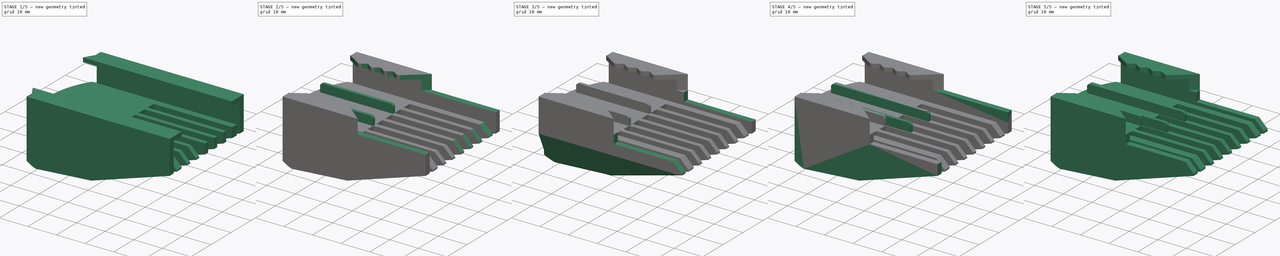
[diagram: build sequence overview — one tinted view per stage of 5, left to right]
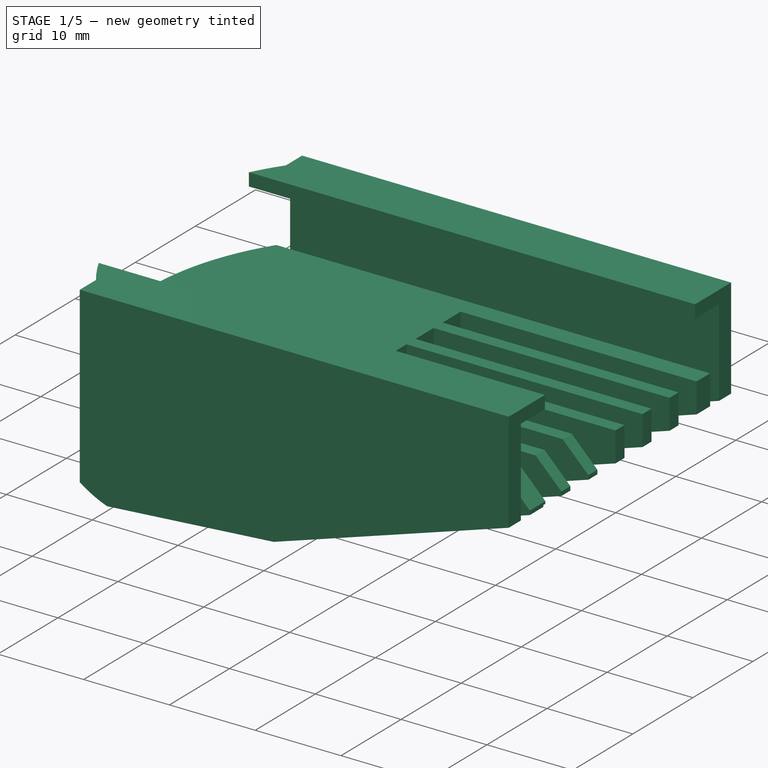
[diagram: stage 1 of 5 — iso view after this stage's code; geometry added in this stage tinted green]
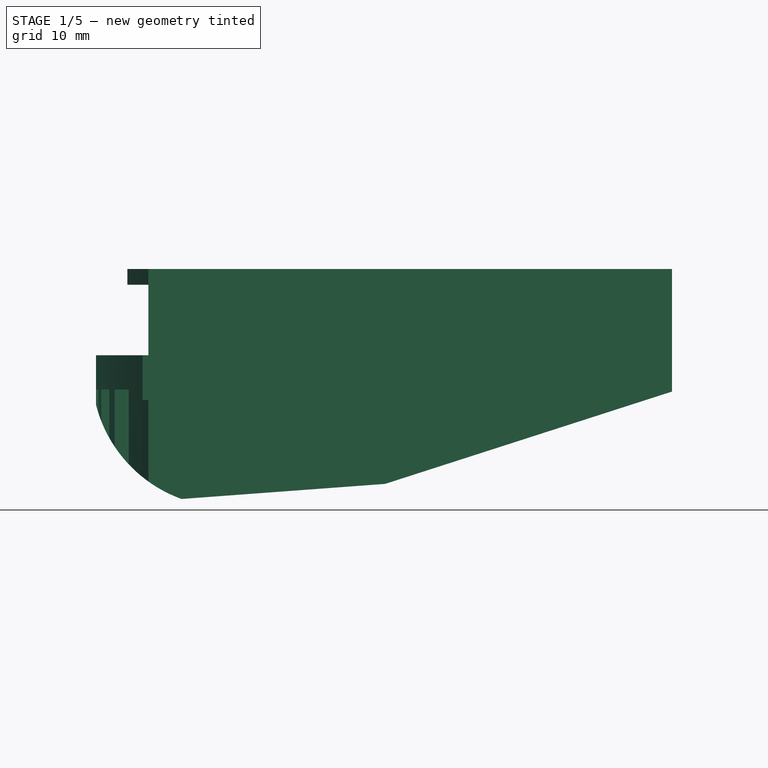
[diagram: stage 1 of 5 — front view after this stage's code; geometry added in this stage tinted green]
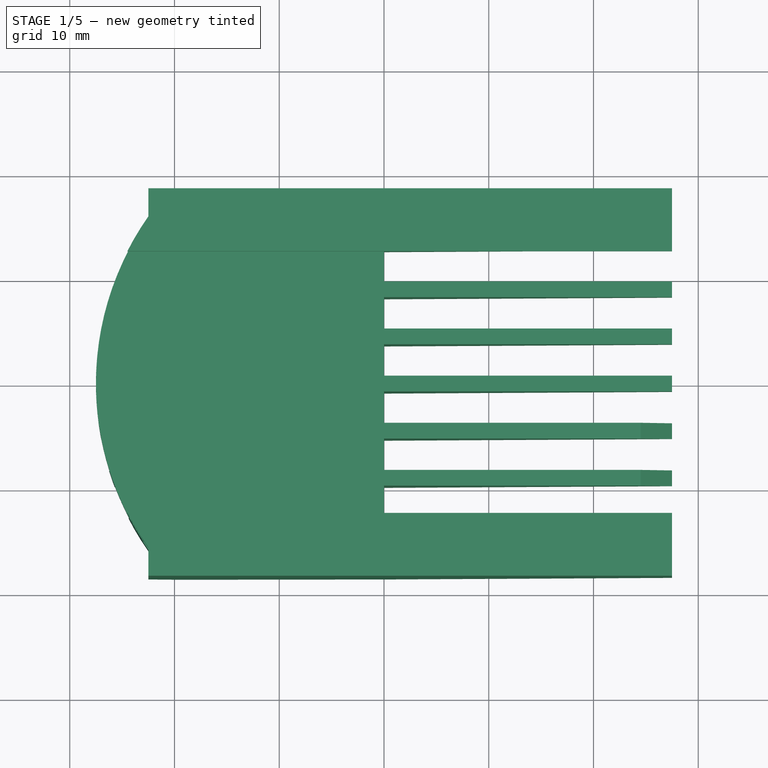
[diagram: stage 1 of 5 — top view after this stage's code; geometry added in this stage tinted green]
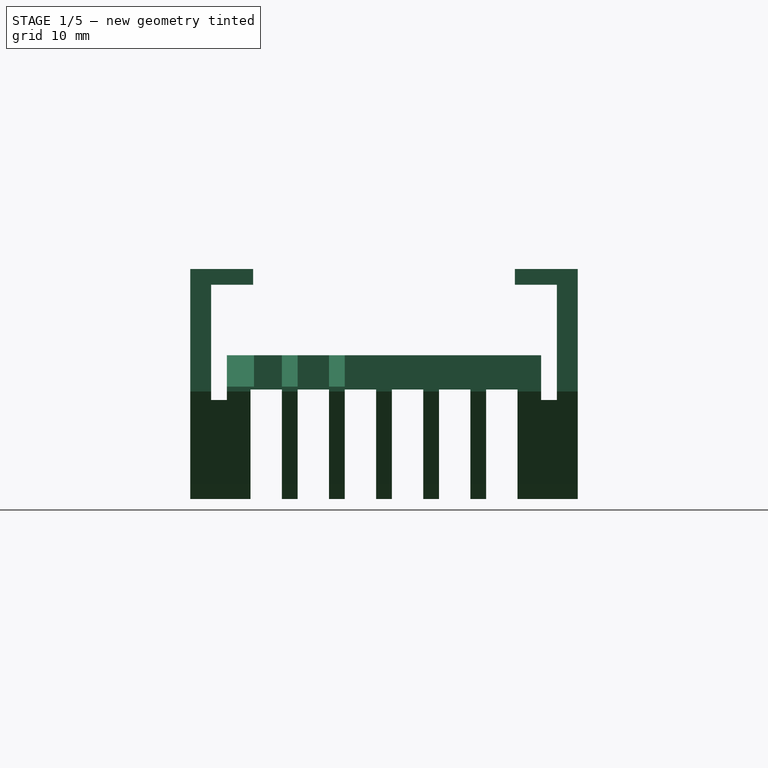
[diagram: stage 1 of 5 — right view after this stage's code; geometry added in this stage tinted green]
FCSTD DOCUMENT  (FreeCAD 0.19R24291 (Git))
Label: model
License: All rights reserved
LicenseURL: http://en.wikipedia.org/wiki/All_rights_reserved
objects: PartDesign::Fillet×20, Sketcher::SketchObject×11, PartDesign::Chamfer×11, PartDesign::Pocket×10, PartDesign::Pad×2, PartDesign::Plane×2, Spreadsheet::Sheet×1, PartDesign::Point×1, PartDesign::Body×1
note: 101 computed .brp shape members not serialized (recipe doc carries the construction recipe); baked Part::Feature solids carry a one-line shape summary decoded from their .brp

FEATURE [Spreadsheet::Sheet] Spreadsheet  label="parameters"
  cells = A1=length; B1(length)=55; A2=width; B2(width)=37; A3=height; B3(height)=22
FEATURE [PartDesign::Point] DatumPoint
  AttacherType = Attacher::AttachEnginePoint
FEATURE [Sketcher::SketchObject] Sketch
  FullyConstrained = false
  MapMode = 5
  Support = -> [XY_Plane]
  expr: Constraints[5] = <<parameters>>.width
  expr: Constraints[6] = <<parameters>>.width / 2
  sketch-geometry (7):
    g0: LineSegment StartX=-22.5 StartY=18.5 StartZ=0 EndX=27.5 EndY=18.5 EndZ=0
    g1: LineSegment StartX=27.5 StartY=18.5 StartZ=0 EndX=27.5 EndY=-18.5 EndZ=0
    g2: LineSegment StartX=27.5 StartY=-18.5 StartZ=0 EndX=-22.5 EndY=-18.5 EndZ=0
    g3: ArcOfCircle CenterX=0 CenterY=0 CenterZ=0 NormalX=0 NormalY=0 NormalZ=1 AngleXU=0 Radius=27.5 StartAngle=2.52904 EndAngle=3.75415
    g4: LineSegment StartX=-22.5 StartY=15.8114 StartZ=0 EndX=-22.5 EndY=18.5 EndZ=0
    g5: LineSegment StartX=-22.5 StartY=-15.8114 StartZ=0 EndX=-22.5 EndY=-18.5 EndZ=0
    g6: GeomPoint X=-27.5 Y=-4.01198e-05 Z=0
  constraints (17):
    c: Coincident(g0,g1)
    c: Coincident(g1,g2)
    c: Horizontal(g0)
    c: Horizontal(g2)
    c: Vertical(g1)
    c: DistanceY(g1,g0) = 37
    c: DistanceY(g-1,g0) = 18.5
    c: Coincident(g3,g-1)
    c: Vertical(g4)
    c: Vertical(g5)
    c: Coincident(g3,g4)
    c: Coincident(g3,g5)
    c: DistanceX(g3,g0) = 27.5
    c: Coincident(g0,g4)
    c: Coincident(g2,g5)
    c: PointOnObject(g6,g3)
    c: DistanceX(g6,g3) = 27.5
FEATURE [PartDesign::Pad] Pad
  Direction = (1,1,1)
  Length = 22
  Length2 = 100
  Profile = -> Sketch
  Type = 0
  expr: Length = <<parameters>>.height
FEATURE [Sketcher::SketchObject] Sketch001
  FullyConstrained = false
  MapMode = 5
  Placement = pos=(27.5,0,0) rot=(0.57735,0.57735,0.57735;2.0944rad)
  Support = -> [Pad]
  expr: Constraints[22] = <<parameters>>.height / 2
  sketch-geometry (15):
    g0: GeomPoint X=0 Y=11 Z=0
    g1: LineSegment StartX=-12.5 StartY=22 StartZ=0 EndX=12.5 EndY=22 EndZ=0
    g2: LineSegment StartX=-16.5 StartY=20.5 StartZ=0 EndX=-12.5 EndY=20.5 EndZ=0
    g3: LineSegment StartX=-12.5 StartY=22 StartZ=0 EndX=-12.5 EndY=20.5 EndZ=0
    g4: LineSegment StartX=12.5 StartY=22 StartZ=0 EndX=12.5 EndY=20.5 EndZ=0
    g5: LineSegment StartX=-16.5 StartY=20.5 StartZ=0 EndX=-16.5 EndY=13.772 EndZ=0
    g6: LineSegment StartX=-15 StartY=13.772 StartZ=0 EndX=15 EndY=13.772 EndZ=0
    g7: LineSegment StartX=16.5 StartY=20.5 StartZ=0 EndX=16.5 EndY=13.772 EndZ=0
    g8: LineSegment StartX=-16.5 StartY=13.772 StartZ=0 EndX=-16.5 EndY=9.5 EndZ=0
    g9: LineSegment StartX=-16.5 StartY=9.5 StartZ=0 EndX=-15 EndY=9.5 EndZ=0
    g10: LineSegment StartX=-15 StartY=9.5 StartZ=0 EndX=-15 EndY=13.772 EndZ=0
    g11: LineSegment StartX=16.5 StartY=13.772 StartZ=0 EndX=16.5 EndY=9.5 EndZ=0
    g12: LineSegment StartX=16.5 StartY=9.5 StartZ=0 EndX=15 EndY=9.5 EndZ=0
    g13: LineSegment StartX=15 StartY=9.5 StartZ=0 EndX=15 EndY=13.772 EndZ=0
    g14: LineSegment StartX=12.5 StartY=20.5 StartZ=0 EndX=16.5 EndY=20.5 EndZ=0
  constraints (35):
    c: PointOnObject(g0,g-2)
    c: Horizontal(g1)
    c: Horizontal(g2)
    c: Vertical(g3)
    c: Vertical(g4)
    c: Coincident(g5,g2)
    c: Vertical(g5)
    c: Horizontal(g6)
    c: Coincident(g7,g14)
    c: Vertical(g7)
    c: Coincident(g8,g5)
    c: Vertical(g8)
    c: Coincident(g9,g8)
    c: Horizontal(g9)
    c: Coincident(g10,g9)
    c: Vertical(g10)
    c: Coincident(g11,g7)
    c: Vertical(g11)
    c: Coincident(g12,g11)
    c: Horizontal(g12)
    c: Coincident(g13,g12)
    c: Vertical(g13)
    c: DistanceY(g-1,g0) = 11
    c: Coincident(g6,g10)
    c: Coincident(g6,g13)
    c: Coincident(g2,g3)
    c: Coincident(g14,g4)
    c: Tangent(g2,g14)
    c: DistanceX(g8,g9) = 1.5
    c: DistanceX(g12,g11) = 1.5
    c: DistanceY(g2,g3) = 1.5
    c: DistanceY(g8,g2) = 11
    c: DistanceY(g11,g7) = 11
    c: Coincident(g1,g3)
    c: Coincident(g1,g4)
FEATURE [PartDesign::Pocket] Pocket
  BaseFeature = -> Pad
  Length = 5
  Length2 = 100
  Profile = -> Sketch001
  Type = 1
FEATURE [Sketcher::SketchObject] Sketch002
  FullyConstrained = false
  MapMode = 5
  Placement = pos=(0,-18.5,0) rot=(1,0,0;1.5708rad)
  Support = -> [Pocket]
  sketch-geometry (8):
    g0: LineSegment StartX=27.5 StartY=10.3029 StartZ=0 EndX=27.5 EndY=0 EndZ=0
    g1: LineSegment StartX=-19.3265 StartY=0 StartZ=0 EndX=-27.5 EndY=0 EndZ=0
    g2: LineSegment StartX=-27.5 StartY=0 StartZ=0 EndX=-27.5 EndY=9.04586 EndZ=0
    g3: ArcOfCircle CenterX=-14.9072 CenterY=12.274 CenterZ=0 NormalX=0 NormalY=0 NormalZ=1 AngleXU=0 Radius=13 StartAngle=3.39254 EndAngle=4.36553
    g4: GeomPoint X=5.5 Y=1.30201 Z=0
    g5: LineSegment StartX=-19.3265 StartY=0.0482022 StartZ=0 EndX=0.104304 EndY=1.48647 EndZ=0
    g6: LineSegment StartX=0.104304 StartY=1.48647 StartZ=0 EndX=27.5 EndY=10.3029 EndZ=0
    g7: LineSegment StartX=-19.3265 StartY=0 StartZ=0 EndX=27.5 EndY=0 EndZ=0
  constraints (16):
    c: Coincident(g1,g2)
    c: Horizontal(g1)
    c: Vertical(g0)
    c: Vertical(g2)
    c: PointOnObject(g0,g-1)
    c: DistanceX(g-1,g0) = 27.5
    c: DistanceX(g1,g-1) = 27.5
    c: Radius(g3) = 13
    c: DistanceX(g1,g4) = 33
    c: Coincident(g5,g3)
    c: Coincident(g6,g5)
    c: Coincident(g2,g3)
    c: Coincident(g0,g6)
    c: Coincident(g7,g1)
    c: Coincident(g7,g0)
    c: Horizontal(g7)
FEATURE [PartDesign::Pocket] Pocket001
  BaseFeature = -> Pocket
  Length = 5
  Length2 = 100
  Profile = -> Sketch002
  Type = 1
FEATURE [PartDesign::Plane] DatumPlane
  AttachmentOffset = pos=(0,0,-10.5) rot=(0,0,1;0rad)
  Length = 65.4881
  MapMode = 5
  Placement = pos=(0,0,10.5) rot=(0,1,0;3.14159rad)
  ResizeMode = 0
  Support = -> [XY_Plane]
  Width = 60.4881
FEATURE [Sketcher::SketchObject] Sketch003
  FullyConstrained = false
  MapMode = 5
  Placement = pos=(0,0,10.5) rot=(0,1,0;3.14159rad)
  Support = -> [DatumPlane]
  sketch-geometry (24):
    g0: LineSegment StartX=27.6077 StartY=0.75 StartZ=0 EndX=-28.7834 EndY=0.75 EndZ=0
    g1: LineSegment StartX=27.6077 StartY=3.75 StartZ=0 EndX=-28.7834 EndY=3.75 EndZ=0
    g2: LineSegment StartX=27.6077 StartY=0.75 StartZ=0 EndX=27.6077 EndY=3.75 EndZ=0
    g3: LineSegment StartX=-28.7834 StartY=0.75 StartZ=0 EndX=-28.7834 EndY=3.75 EndZ=0
    g4: LineSegment StartX=27.6638 StartY=-0.75 StartZ=0 EndX=-28.4956 EndY=-0.75 EndZ=0
    g5: LineSegment StartX=27.6638 StartY=-0.75 StartZ=0 EndX=27.6638 EndY=-3.75 EndZ=0
    g6: LineSegment StartX=27.6638 StartY=-3.75 StartZ=0 EndX=-28.4183 EndY=-3.75 EndZ=0
    g7: LineSegment StartX=-28.4183 StartY=-3.75 StartZ=0 EndX=-28.4956 EndY=-0.75 EndZ=0
    g8: LineSegment StartX=-28.6708 StartY=5.25 StartZ=0 EndX=27.643 EndY=5.25 EndZ=0
    g9: LineSegment StartX=-28.6708 StartY=5.25 StartZ=0 EndX=-28.6708 EndY=8.25 EndZ=0
    g10: LineSegment StartX=-28.6708 StartY=8.25 StartZ=0 EndX=27.4885 EndY=8.25 EndZ=0
    g11: LineSegment StartX=27.4885 StartY=8.25 StartZ=0 EndX=27.643 EndY=5.25 EndZ=0
    g12: LineSegment StartX=-28.3618 StartY=-5.25 StartZ=0 EndX=27.7203 EndY=-5.25 EndZ=0
    g13: LineSegment StartX=27.7203 StartY=-5.25 StartZ=0 EndX=27.7203 EndY=-8.25 EndZ=0
    g14: LineSegment StartX=27.7203 StartY=-8.25 StartZ=0 EndX=-28.3618 EndY=-8.25 EndZ=0
    g15: LineSegment StartX=-28.3618 StartY=-5.25 StartZ=0 EndX=-28.3618 EndY=-8.25 EndZ=0
    g16: LineSegment StartX=-28.6708 StartY=9.75 StartZ=0 EndX=27.643 EndY=9.75 EndZ=0
    g17: LineSegment StartX=27.643 StartY=9.75 StartZ=0 EndX=27.643 EndY=12.75 EndZ=0
    g18: LineSegment StartX=27.643 StartY=12.75 StartZ=0 EndX=-28.6708 EndY=12.75 EndZ=0
    g19: LineSegment StartX=-28.6708 StartY=12.75 StartZ=0 EndX=-28.6708 EndY=9.75 EndZ=0
    g20: LineSegment StartX=-28.2073 StartY=-9.75 StartZ=0 EndX=27.8748 EndY=-9.75 EndZ=0
    g21: LineSegment StartX=27.8748 StartY=-9.75 StartZ=0 EndX=27.8748 EndY=-12.75 EndZ=0
    g22: LineSegment StartX=27.8748 StartY=-12.75 StartZ=0 EndX=-28.2073 EndY=-12.75 EndZ=0
    g23: LineSegment StartX=-28.2073 StartY=-12.75 StartZ=0 EndX=-28.2073 EndY=-9.75 EndZ=0
  constraints (58):
    c: Horizontal(g0)
    c: Horizontal(g1)
    c: DistanceY(g0,g1) = 3
    c: DistanceY(g0,g-1) = -0.75
    c: Coincident(g2,g0)
    c: Coincident(g2,g1)
    c: Vertical(g2)
    c: Coincident(g3,g0)
    c: Coincident(g3,g1)
    c: Vertical(g3)
    c: Horizontal(g4)
    c: Coincident(g5,g4)
    c: Vertical(g5)
    c: Coincident(g6,g5)
    c: Horizontal(g6)
    c: Coincident(g7,g6)
    c: Coincident(g7,g4)
    c: DistanceY(g4,g0) = 1.5
    c: DistanceY(g5,g4) = 3
    c: Horizontal(g8)
    c: Coincident(g9,g8)
    c: Vertical(g9)
    c: Coincident(g10,g9)
    c: Horizontal(g10)
    c: Coincident(g11,g10)
    c: Coincident(g11,g8)
    c: Horizontal(g12)
    c: Coincident(g13,g12)
    c: Vertical(g13)
    c: Coincident(g14,g13)
    c: Horizontal(g14)
    c: Coincident(g15,g12)
    c: Coincident(g15,g14)
    c: Vertical(g15)
    c: DistanceY(g1,g8) = 1.5
    c: DistanceY(g8,g9) = 3
    c: DistanceY(g12,g6) = 1.5
    c: DistanceY(g14,g12) = 3
    c: Horizontal(g16)
    c: Coincident(g17,g16)
    c: Vertical(g17)
    c: Coincident(g18,g17)
    c: Horizontal(g18)
    c: Coincident(g19,g18)
    c: Coincident(g19,g16)
    c: Vertical(g19)
    c: Horizontal(g20)
    c: Coincident(g21,g20)
    c: Vertical(g21)
    c: Coincident(g22,g21)
    c: Horizontal(g22)
    c: Coincident(g23,g22)
    c: Coincident(g23,g20)
    c: Vertical(g23)
    c: DistanceY(g9,g16) = 1.5
    c: DistanceY(g16,g18) = 3
    c: DistanceY(g20,g14) = 1.5
    c: DistanceY(g22,g20) = 3
FEATURE [PartDesign::Pocket] Pocket002
  BaseFeature = -> Pocket001
  Length = 5
  Length2 = 100
  Profile = -> Sketch003
  Reversed = true
  Type = 1
FEATURE [Sketcher::SketchObject] Sketch004
  FullyConstrained = false
  MapMode = 5
  Placement = pos=(0,0,13.772) rot=(0,0,1;0rad)
  Support = -> [Pocket002]
  sketch-geometry (25):
    g0: LineSegment StartX=0 StartY=12.75 StartZ=0 EndX=0 EndY=9.75 EndZ=0
    g1: LineSegment StartX=0 StartY=0.75 StartZ=0 EndX=28.2647 EndY=0.75 EndZ=0
    g2: LineSegment StartX=0 StartY=3.75 StartZ=0 EndX=28.1511 EndY=3.75 EndZ=0
    g3: LineSegment StartX=0 StartY=-0.75 StartZ=0 EndX=28.2647 EndY=-0.75 EndZ=0
    g4: LineSegment StartX=0 StartY=-3.75 StartZ=0 EndX=28.2647 EndY=-3.75 EndZ=0
    g5: LineSegment StartX=28.2647 StartY=0.75 StartZ=0 EndX=28.2647 EndY=-0.75 EndZ=0
    g6: LineSegment StartX=0 StartY=5.25 StartZ=0 EndX=28.1511 EndY=5.25 EndZ=0
    g7: LineSegment StartX=28.1511 StartY=5.25 StartZ=0 EndX=28.1511 EndY=3.75 EndZ=0
    g8: LineSegment StartX=0 StartY=8.25 StartZ=0 EndX=27.7899 EndY=8.25 EndZ=0
    g9: LineSegment StartX=0 StartY=9.75 StartZ=0 EndX=27.7899 EndY=9.75 EndZ=0
    g10: LineSegment StartX=27.7899 StartY=8.25 StartZ=0 EndX=27.7899 EndY=9.75 EndZ=0
    g11: LineSegment StartX=0 StartY=12.75 StartZ=0 EndX=30.0485 EndY=12.75 EndZ=0
    g12: LineSegment StartX=28.2647 StartY=-3.75 StartZ=0 EndX=28.2647 EndY=-5.25 EndZ=0
    g13: LineSegment StartX=28.2647 StartY=-5.25 StartZ=0 EndX=0 EndY=-5.25 EndZ=0
    g14: LineSegment StartX=0 StartY=-5.25 StartZ=0 EndX=0 EndY=-8.25 EndZ=0
    g15: LineSegment StartX=28.3296 StartY=-9.75 StartZ=0 EndX=0 EndY=-9.75 EndZ=0
    g16: LineSegment StartX=0 StartY=-8.25 StartZ=0 EndX=28.3296 EndY=-8.25 EndZ=0
    g17: LineSegment StartX=28.3296 StartY=-8.25 StartZ=0 EndX=28.3296 EndY=-9.75 EndZ=0
    g18: LineSegment StartX=0 StartY=-12.4073 StartZ=0 EndX=30.0485 EndY=-12.4073 EndZ=0
    g19: LineSegment StartX=30.0485 StartY=-12.4073 StartZ=0 EndX=30.0485 EndY=12.75 EndZ=0
    g20: LineSegment StartX=0 StartY=-0.75 StartZ=0 EndX=0 EndY=-3.75 EndZ=0
    g21: LineSegment StartX=0 StartY=-5.25 StartZ=0 EndX=0 EndY=-8.25 EndZ=0
    g22: LineSegment StartX=0 StartY=-9.75 StartZ=0 EndX=0 EndY=-12.4073 EndZ=0
    g23: LineSegment StartX=0 StartY=8.25 StartZ=0 EndX=0 EndY=5.25 EndZ=0
    g24: LineSegment StartX=0 StartY=3.75 StartZ=0 EndX=0 EndY=0.75 EndZ=0
  constraints (66):
    c: Horizontal(g1)
    c: PointOnObject(g2,g0)
    c: Horizontal(g2)
    c: Horizontal(g3)
    c: PointOnObject(g4,g0)
    c: Horizontal(g4)
    c: Coincident(g5,g1)
    c: Coincident(g5,g3)
    c: Vertical(g5)
    c: DistanceY(g3,g1) = 1.5
    c: DistanceY(g-1,g1) = 0.75
    c: DistanceY(g1,g2) = 3
    c: DistanceY(g4,g3) = 3
    c: PointOnObject(g6,g0)
    c: Horizontal(g6)
    c: Coincident(g7,g6)
    c: Coincident(g7,g2)
    c: Vertical(g7)
    c: Horizontal(g8)
    c: Horizontal(g9)
    c: Coincident(g10,g8)
    c: Coincident(g10,g9)
    c: Vertical(g10)
    c: Horizontal(g11)
    c: DistanceY(g2,g6) = 1.5
    c: DistanceY(g6,g8) = 3
    c: DistanceY(g8,g9) = 1.5
    c: DistanceY(g9,g11) = 3
    c: Coincident(g12,g4)
    c: Vertical(g12)
    c: Coincident(g13,g12)
    c: PointOnObject(g13,g0)
    c: Horizontal(g13)
    c: Coincident(g14,g13)
    c: PointOnObject(g14,g0)
    c: PointOnObject(g15,g0)
    c: Horizontal(g15)
    c: DistanceY(g13,g4) = 1.5
    c: DistanceY(g14,g13) = 3
    c: Coincident(g16,g14)
    c: Horizontal(g16)
    c: Coincident(g17,g16)
    c: Coincident(g17,g15)
    c: Vertical(g17)
    c: DistanceY(g15,g16) = 1.5
    c: PointOnObject(g18,g0)
    c: Horizontal(g18)
    c: Coincident(g19,g18)
    c: Coincident(g19,g11)
    c: Vertical(g19)
    c: Coincident(g24,g1)
    c: Coincident(g20,g3)
    c: Tangent(g0,g20)
    c: PointOnObject(g20,g4)
    c: PointOnObject(g21,g13)
    c: Tangent(g20,g21)
    c: PointOnObject(g22,g15)
    c: Tangent(g21,g22)
    c: Coincident(g0,g9)
    c: Coincident(g23,g8)
    c: Tangent(g0,g23)
    c: Coincident(g0,g11)
    c: PointOnObject(g22,g18)
    c: PointOnObject(g23,g6)
    c: PointOnObject(g24,g2)
    c: Tangent(g23,g24)
FEATURE [PartDesign::Pocket] Pocket003
  BaseFeature = -> Pocket002
  Length = 5
  Length2 = 100
  Profile = -> Sketch004
  Type = 1
FEATURE [PartDesign::Pocket] Pocket004
  BaseFeature = -> Pocket003
  Length = 5
  Length2 = 100
  Profile = -> Sketch004
  Type = 1
FEATURE [PartDesign::Chamfer] Chamfer
  Angle = 45
  Base = -> Pocket004 [Edge150]
  BaseFeature = -> Pocket004
  ChamferType = 0
  FlipDirection = false
  Size = 3
  Size2 = 1
  SupportTransform = false
FEATURE [PartDesign::Chamfer] Chamfer001
  Angle = 45
  Base = -> Chamfer [Edge24]
  BaseFeature = -> Chamfer
  ChamferType = 0
  FlipDirection = false
  Size = 3
  Size2 = 1
  SupportTransform = false
FEATURE [PartDesign::Chamfer] Chamfer002
  Angle = 45
  Base = -> Chamfer001 [Edge10]
  BaseFeature = -> Chamfer001
  ChamferType = 0
  FlipDirection = false
  Size = 3
  Size2 = 1
  SupportTransform = false
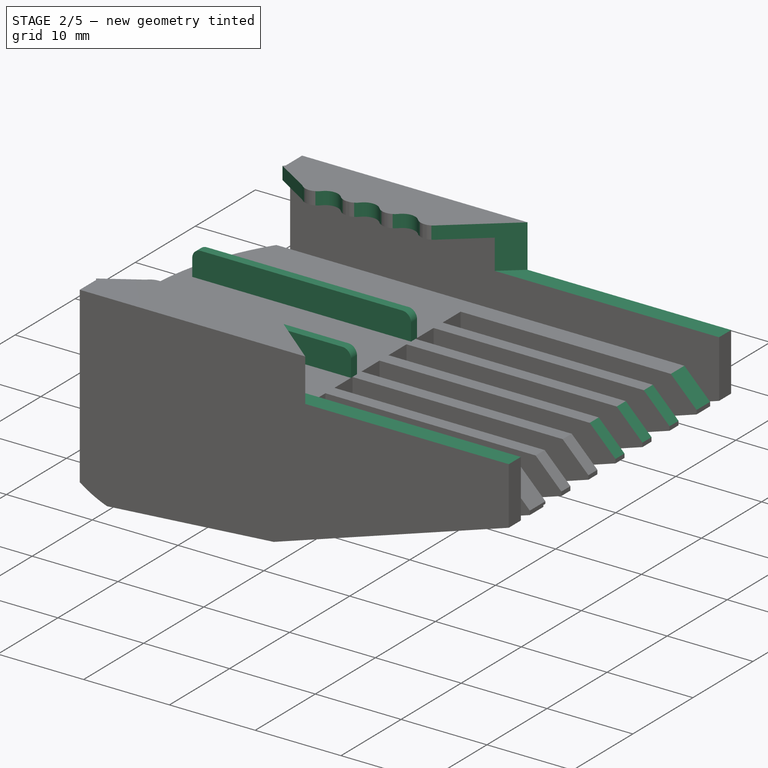
[diagram: stage 2 of 5 — iso view after this stage's code; geometry added in this stage tinted green]
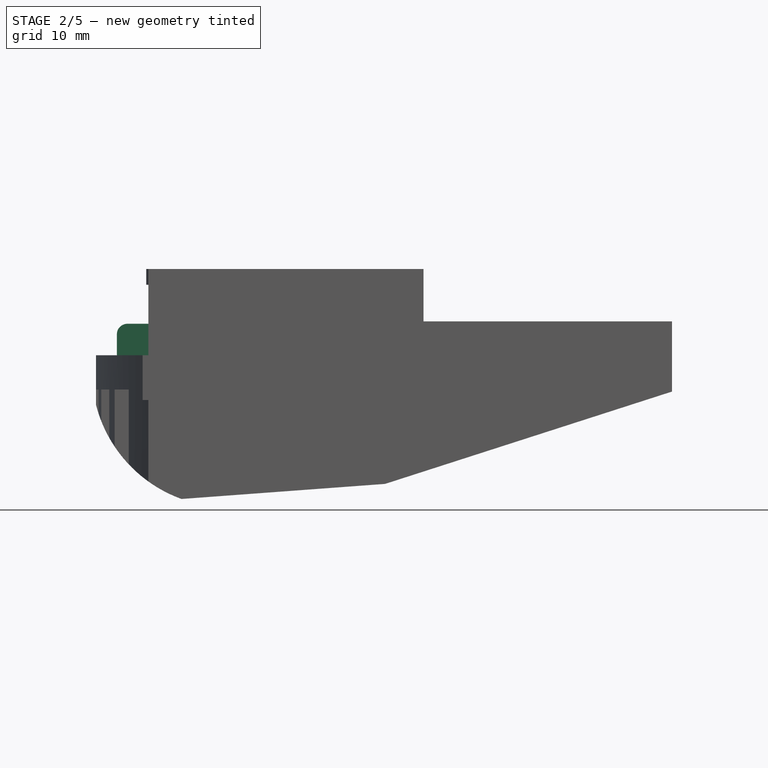
[diagram: stage 2 of 5 — front view after this stage's code; geometry added in this stage tinted green]
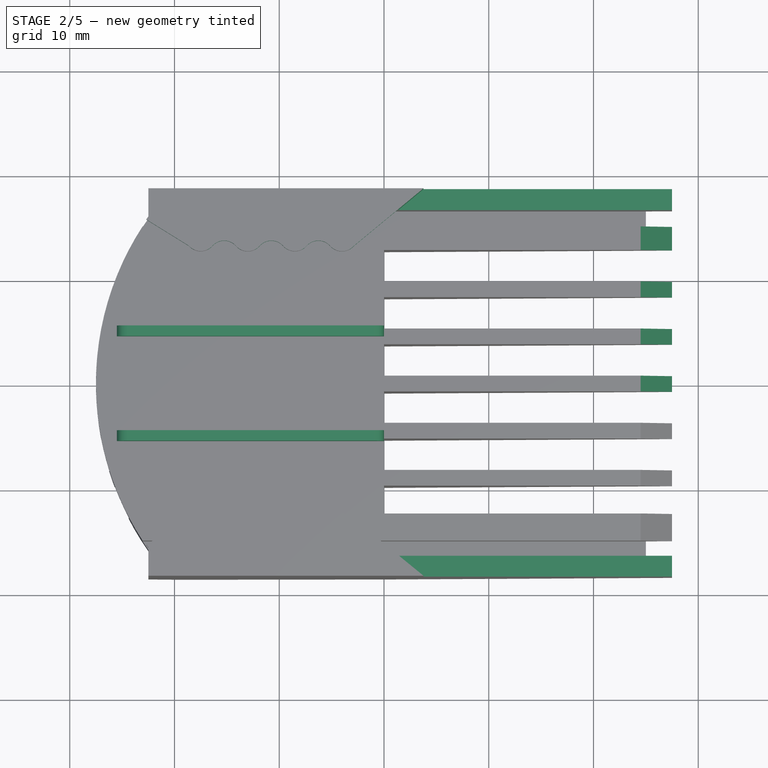
[diagram: stage 2 of 5 — top view after this stage's code; geometry added in this stage tinted green]
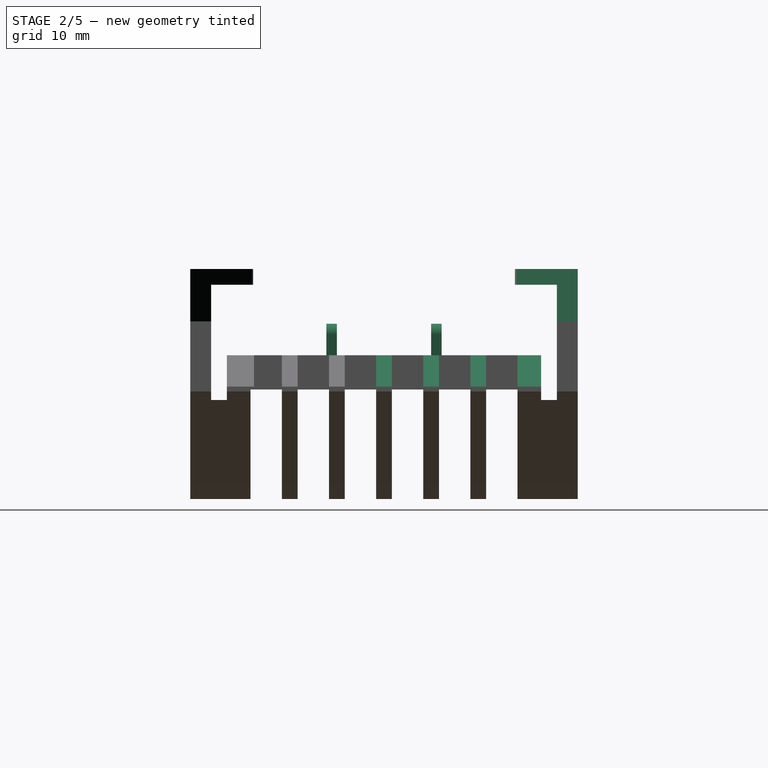
[diagram: stage 2 of 5 — right view after this stage's code; geometry added in this stage tinted green]
FEATURE [PartDesign::Chamfer] Chamfer003
  Angle = 45
  Base = -> Chamfer002 [Edge10]
  BaseFeature = -> Chamfer002
  ChamferType = 0
  FlipDirection = false
  Size = 3
  Size2 = 1
  SupportTransform = false
FEATURE [PartDesign::Chamfer] Chamfer004
  Angle = 45
  Base = -> Chamfer003 [Edge10]
  BaseFeature = -> Chamfer003
  ChamferType = 0
  FlipDirection = false
  Size = 3
  Size2 = 1
  SupportTransform = false
FEATURE [PartDesign::Chamfer] Chamfer005
  Angle = 45
  Base = -> Chamfer004 [Edge10]
  BaseFeature = -> Chamfer004
  ChamferType = 0
  FlipDirection = false
  Size = 3
  Size2 = 1
  SupportTransform = false
FEATURE [PartDesign::Chamfer] Chamfer006
  Angle = 45
  Base = -> Chamfer005 [Edge10]
  BaseFeature = -> Chamfer005
  ChamferType = 0
  FlipDirection = false
  Size = 3
  Size2 = 1
  SupportTransform = false
FEATURE [Sketcher::SketchObject] Sketch005
  FullyConstrained = false
  MapMode = 5
  Placement = pos=(0,0,22) rot=(0,0,1;0rad)
  Support = -> [Chamfer006]
  expr: Constraints[8] = <<parameters>>.width / 2
  expr: Constraints[9] = <<parameters>>.width
  expr: Constraints[6] = <<parameters>>.length / 2
  expr: Constraints[7] = <<parameters>>.length
  sketch-geometry (36):
    g0: LineSegment StartX=-27.5 StartY=18.5 StartZ=0 EndX=-27.5 EndY=-18.5 EndZ=0
    g1: LineSegment StartX=27.5 StartY=18.5 StartZ=0 EndX=27.5 EndY=-18.5 EndZ=0
    g2: LineSegment StartX=3.77643 StartY=-18.5 StartZ=0 EndX=27.5 EndY=-18.5 EndZ=0
    g3: LineSegment StartX=27.5 StartY=18.5 StartZ=0 EndX=3.77643 EndY=18.5 EndZ=0
    g4: ArcOfCircle CenterX=-17.5 CenterY=-14 CenterZ=0 NormalX=0 NormalY=0 NormalZ=1 AngleXU=0 Radius=1.5 StartAngle=0.729728 EndAngle=1.5708
    g5: ArcOfCircle CenterX=-15.2639 CenterY=-12 CenterZ=0 NormalX=0 NormalY=0 NormalZ=1 AngleXU=0 Radius=1.5 StartAngle=3.87132 EndAngle=4.71239
    g6: ArcOfCircle CenterX=-15.2639 CenterY=-12 CenterZ=0 NormalX=0 NormalY=0 NormalZ=1 AngleXU=0 Radius=1.5 StartAngle=4.71239 EndAngle=5.55346
    g7: ArcOfCircle CenterX=-17.5 CenterY=-14 CenterZ=0 NormalX=0 NormalY=0 NormalZ=1 AngleXU=0 Radius=1.5 StartAngle=1.5708 EndAngle=2.41186
    g8: ArcOfCircle CenterX=-13.0279 CenterY=-14 CenterZ=0 NormalX=0 NormalY=0 NormalZ=1 AngleXU=0 Radius=1.5 StartAngle=1.5708 EndAngle=2.41186
    g9: ArcOfCircle CenterX=-13.0279 CenterY=-14 CenterZ=0 NormalX=0 NormalY=0 NormalZ=1 AngleXU=0 Radius=1.5 StartAngle=0.729728 EndAngle=1.5708
    g10: ArcOfCircle CenterX=-10.7918 CenterY=-12 CenterZ=0 NormalX=0 NormalY=0 NormalZ=1 AngleXU=0 Radius=1.5 StartAngle=3.87132 EndAngle=4.71239
    g11: ArcOfCircle CenterX=-10.7918 CenterY=-12 CenterZ=0 NormalX=0 NormalY=0 NormalZ=1 AngleXU=0 Radius=1.5 StartAngle=4.71239 EndAngle=5.55346
    g12: ArcOfCircle CenterX=-8.55573 CenterY=-14 CenterZ=0 NormalX=0 NormalY=0 NormalZ=1 AngleXU=0 Radius=1.5 StartAngle=1.5708 EndAngle=2.41186
    g13: ArcOfCircle CenterX=-8.55573 CenterY=-14 CenterZ=0 NormalX=0 NormalY=0 NormalZ=1 AngleXU=0 Radius=1.5 StartAngle=0.729728 EndAngle=1.5708
    g14: ArcOfCircle CenterX=-6.31966 CenterY=-12 CenterZ=0 NormalX=0 NormalY=0 NormalZ=1 AngleXU=0 Radius=1.5 StartAngle=3.87132 EndAngle=4.71239
    g15: ArcOfCircle CenterX=-6.31966 CenterY=-12 CenterZ=0 NormalX=0 NormalY=0 NormalZ=1 AngleXU=0 Radius=1.5 StartAngle=4.71239 EndAngle=5.55346
    g16: ArcOfCircle CenterX=-4.08359 CenterY=-14 CenterZ=0 NormalX=0 NormalY=0 NormalZ=1 AngleXU=0 Radius=1.5 StartAngle=1.5708 EndAngle=2.41186
    g17: ArcOfCircle CenterX=-4.08359 CenterY=-14 CenterZ=0 NormalX=0 NormalY=0 NormalZ=1 AngleXU=0 Radius=1.5 StartAngle=0.729728 EndAngle=1.5708
    g18: LineSegment StartX=-18.618 StartY=-13 StartZ=0 EndX=-27.5 EndY=-18.5 EndZ=0
    g19: LineSegment StartX=-2.96556 StartY=-13 StartZ=0 EndX=3.77643 EndY=-18.5 EndZ=0
    g20: ArcOfCircle CenterX=-17.5 CenterY=14 CenterZ=0 NormalX=0 NormalY=0 NormalZ=1 AngleXU=0 Radius=1.5 StartAngle=4.7127 EndAngle=5.55346
    g21: ArcOfCircle CenterX=-15.2583 CenterY=12 CenterZ=0 NormalX=0 NormalY=0 NormalZ=1 AngleXU=0 Radius=1.50421 StartAngle=1.64564 EndAngle=2.41437
    g22: ArcOfCircle CenterX=-15.2583 CenterY=12 CenterZ=0 NormalX=0 NormalY=0 NormalZ=1 AngleXU=0 Radius=1.50421 StartAngle=0.727227 EndAngle=1.64564
    g23: ArcOfCircle CenterX=-13.0028 CenterY=14 CenterZ=0 NormalX=0 NormalY=0 NormalZ=1 AngleXU=0 Radius=1.51033 StartAngle=3.86522 EndAngle=4.82942
    g24: ArcOfCircle CenterX=-13.0028 CenterY=14 CenterZ=0 NormalX=0 NormalY=0 NormalZ=1 AngleXU=0 Radius=1.51033 StartAngle=4.82942 EndAngle=5.55956
    g25: ArcOfCircle CenterX=-17.5 CenterY=14 CenterZ=0 NormalX=0 NormalY=0 NormalZ=1 AngleXU=0 Radius=1.5 StartAngle=3.87132 EndAngle=4.7127
    g26: ArcOfCircle CenterX=-10.7518 CenterY=12 CenterZ=0 NormalX=0 NormalY=0 NormalZ=1 AngleXU=0 Radius=1.50081 StartAngle=1.53791 EndAngle=2.41235
    g27: ArcOfCircle CenterX=-10.7518 CenterY=12 CenterZ=0 NormalX=0 NormalY=0 NormalZ=1 AngleXU=0 Radius=1.50081 StartAngle=0.729244 EndAngle=1.53791
    g28: ArcOfCircle CenterX=-8.511 CenterY=14 CenterZ=0 NormalX=0 NormalY=0 NormalZ=1 AngleXU=0 Radius=1.5027 StartAngle=3.86971 EndAngle=4.6524
    g29: ArcOfCircle CenterX=-8.511 CenterY=14 CenterZ=0 NormalX=0 NormalY=0 NormalZ=1 AngleXU=0 Radius=1.5027 StartAngle=4.6524 EndAngle=5.55507
    g30: ArcOfCircle CenterX=-6.26798 CenterY=12 CenterZ=0 NormalX=0 NormalY=0 NormalZ=1 AngleXU=0 Radius=1.50248 StartAngle=1.51335 EndAngle=2.41334
    g31: ArcOfCircle CenterX=-6.26798 CenterY=12 CenterZ=0 NormalX=0 NormalY=0 NormalZ=1 AngleXU=0 Radius=1.50248 StartAngle=0.728253 EndAngle=1.51335
    g32: ArcOfCircle CenterX=-4.01205 CenterY=14 CenterZ=0 NormalX=0 NormalY=0 NormalZ=1 AngleXU=0 Radius=1.51237 StartAngle=3.86403 EndAngle=4.84037
    g33: ArcOfCircle CenterX=-4.01205 CenterY=14 CenterZ=0 NormalX=0 NormalY=0 NormalZ=1 AngleXU=0 Radius=1.51237 StartAngle=4.84037 EndAngle=5.56075
    g34: LineSegment StartX=-18.618 StartY=13 StartZ=0 EndX=-27.5 EndY=18.5 EndZ=0
    g35: LineSegment StartX=-2.87747 StartY=13 StartZ=0 EndX=3.77643 EndY=18.5 EndZ=0
  constraints (55):
    c: Vertical(g0)
    c: Vertical(g1)
    c: Coincident(g2,g1)
    c: Horizontal(g2)
    c: Coincident(g3,g1)
    c: Horizontal(g3)
    c: DistanceX(g0,g-1) = 27.5
    c: DistanceX(g0,g1) = 55
    c: DistanceY(g-1,g1) = 18.5
    c: DistanceY(g1,g1) = 37
    c: Coincident(g5,g4)
    c: Coincident(g6,g5)
    c: Coincident(g6,g5)
    c: Coincident(g8,g6)
    c: Coincident(g9,g8)
    c: Coincident(g9,g8)
    c: Coincident(g10,g9)
    c: Coincident(g11,g10)
    c: Coincident(g11,g10)
    c: Coincident(g12,g11)
    c: Coincident(g13,g12)
    c: Coincident(g13,g12)
    c: Coincident(g14,g13)
    c: Coincident(g15,g14)
    c: Coincident(g15,g14)
    c: Coincident(g16,g15)
    c: Coincident(g17,g16)
    c: Coincident(g17,g16)
    c: Coincident(g18,g7)
    c: Coincident(g18,g0)
    c: Coincident(g19,g17)
    c: Coincident(g21,g20)
    c: Coincident(g22,g21)
    c: Coincident(g22,g21)
    c: Coincident(g23,g22)
    c: Coincident(g24,g23)
    c: Coincident(g24,g23)
    c: Coincident(g25,g20)
    c: Coincident(g26,g24)
    c: Coincident(g27,g26)
    c: Coincident(g27,g26)
    c: Coincident(g28,g27)
    c: Coincident(g29,g28)
    c: Coincident(g29,g28)
    c: Coincident(g30,g29)
    c: Coincident(g31,g30)
    c: Coincident(g31,g30)
    c: Coincident(g32,g31)
    c: Coincident(g33,g32)
    c: Coincident(g33,g32)
    c: Coincident(g34,g25)
    c: Coincident(g35,g33)
    c: Coincident(g2,g19)
    c: Coincident(g3,g35)
    c: Coincident(g0,g34)
FEATURE [PartDesign::Pocket] Pocket005
  BaseFeature = -> Chamfer006
  Length = 5
  Length2 = 100
  Profile = -> Sketch005
  Type = 0
FEATURE [Sketcher::SketchObject] Sketch006
  FullyConstrained = false
  MapMode = 5
  Placement = pos=(0,0,13.772) rot=(0,0,1;0rad)
  Support = -> [Pocket005]
  sketch-geometry (8):
    g0: LineSegment StartX=-25.5 StartY=4.9647 StartZ=0 EndX=8.6075 EndY=4.9647 EndZ=0
    g1: LineSegment StartX=8.6075 StartY=4.9647 StartZ=0 EndX=8.6075 EndY=3.9647 EndZ=0
    g2: LineSegment StartX=8.6075 StartY=3.9647 StartZ=0 EndX=-25.5 EndY=3.9647 EndZ=0
    g3: LineSegment StartX=-25.5 StartY=3.9647 StartZ=0 EndX=-25.5 EndY=4.9647 EndZ=0
    g4: LineSegment StartX=-25.5 StartY=-3.99235 StartZ=0 EndX=8.66433 EndY=-3.99235 EndZ=0
    g5: LineSegment StartX=8.66433 StartY=-3.99235 StartZ=0 EndX=8.66433 EndY=-4.99235 EndZ=0
    g6: LineSegment StartX=8.66433 StartY=-4.99235 StartZ=0 EndX=-25.5 EndY=-4.99235 EndZ=0
    g7: LineSegment StartX=-25.5 StartY=-4.99235 StartZ=0 EndX=-25.5 EndY=-3.99235 EndZ=0
  constraints (18):
    c: Coincident(g0,g1)
    c: Coincident(g1,g2)
    c: Coincident(g2,g3)
    c: Coincident(g3,g0)
    c: Horizontal(g0)
    c: Horizontal(g2)
    c: Vertical(g1)
    c: Vertical(g3)
    c: Coincident(g4,g5)
    c: Coincident(g5,g6)
    c: Coincident(g6,g7)
    c: Coincident(g7,g4)
    c: Horizontal(g4)
    c: Horizontal(g6)
    c: Vertical(g5)
    c: Vertical(g7)
    c: DistanceY(g2,g0) = 1
    c: DistanceY(g6,g4) = 1
FEATURE [PartDesign::Pad] Pad001
  BaseFeature = -> Pocket005
  Direction = (1,1,1)
  Length = 3
  Length2 = 100
  Profile = -> Sketch006
  Type = 0
FEATURE [PartDesign::Fillet] Fillet001
  Base = -> Pad001
  BaseFeature = -> Pad001
  Radius = 1
  SupportTransform = false
FEATURE [PartDesign::Fillet] Fillet002
  Base = -> Fillet001 [Edge139,Edge46]
  BaseFeature = -> Fillet001
  Radius = 1
  SupportTransform = false
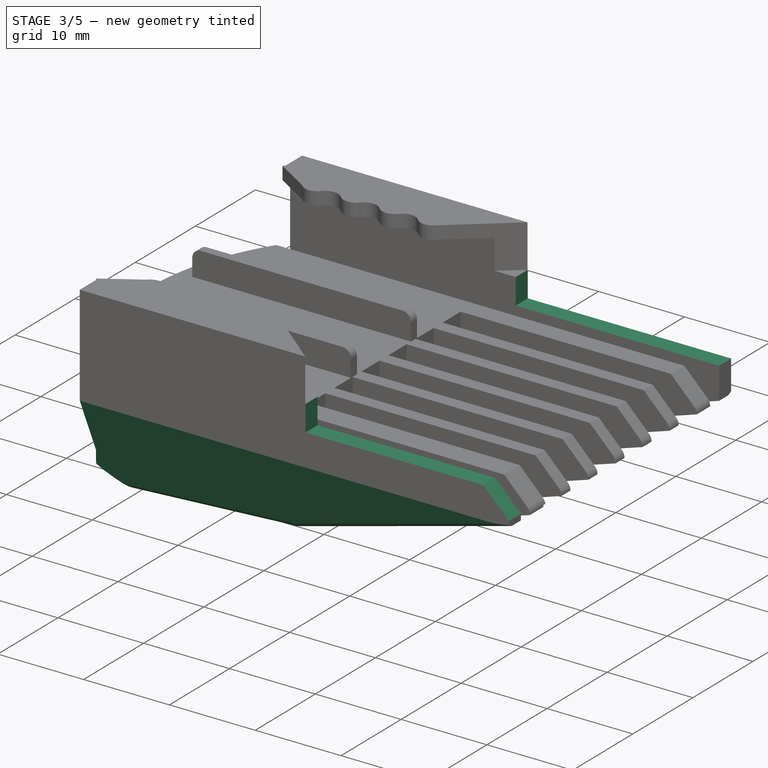
[diagram: stage 3 of 5 — iso view after this stage's code; geometry added in this stage tinted green]
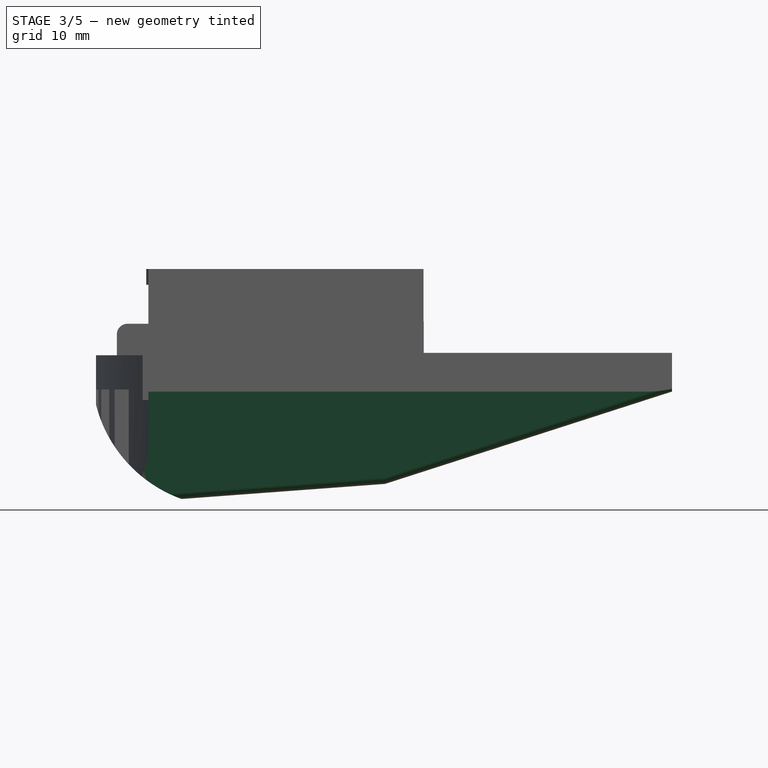
[diagram: stage 3 of 5 — front view after this stage's code; geometry added in this stage tinted green]
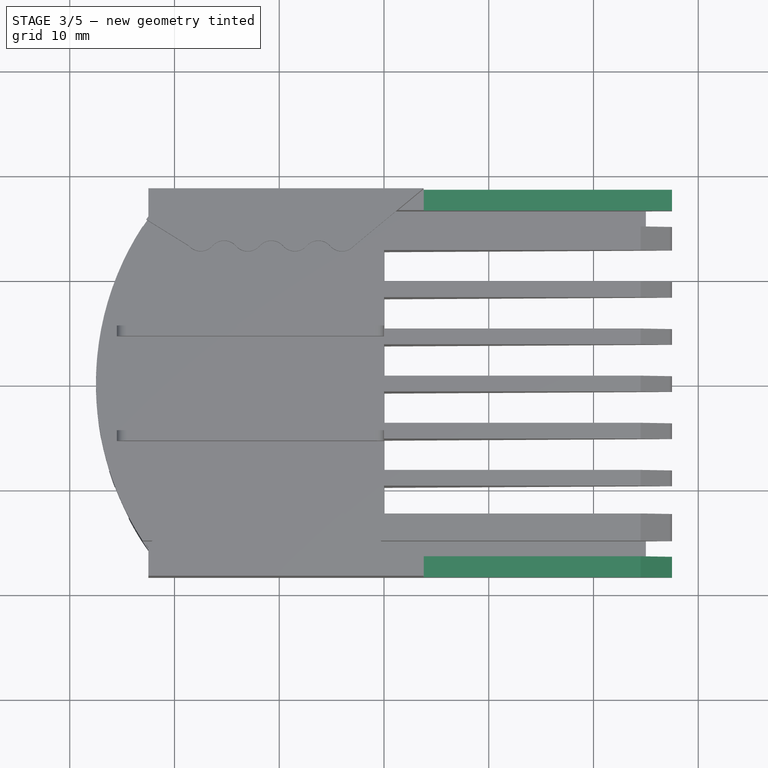
[diagram: stage 3 of 5 — top view after this stage's code; geometry added in this stage tinted green]
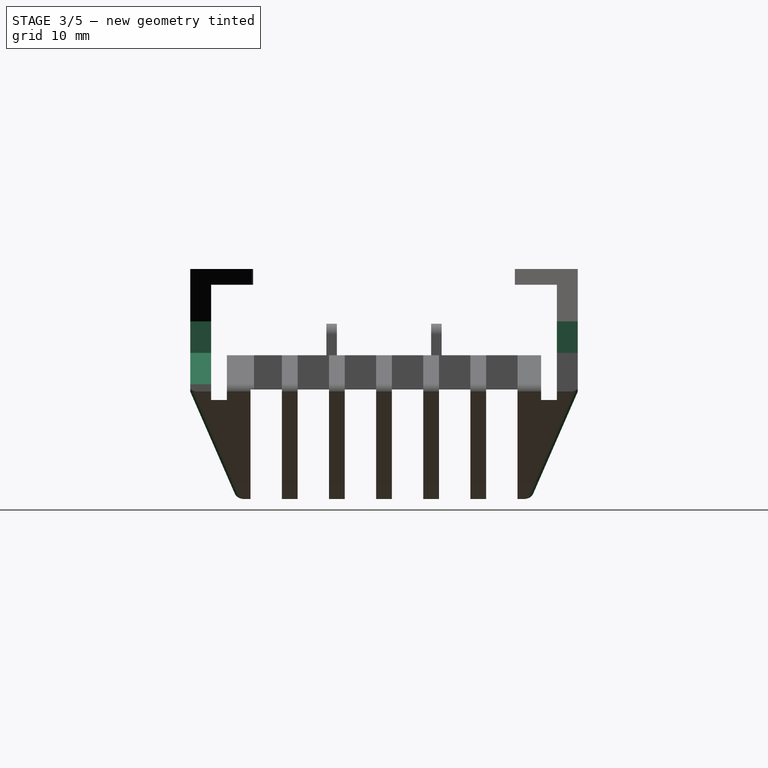
[diagram: stage 3 of 5 — right view after this stage's code; geometry added in this stage tinted green]
FEATURE [PartDesign::Fillet] Fillet003
  Base = -> Fillet002 [Edge97]
  BaseFeature = -> Fillet002
  Radius = 1
  SupportTransform = false
FEATURE [PartDesign::Fillet] Fillet004
  Base = -> Fillet003 [Edge125,Edge148,Edge158,Edge168,Edge191,Edge116]
  BaseFeature = -> Fillet003
  Radius = 1
  SupportTransform = false
FEATURE [PartDesign::Pocket] Pocket006
  BaseFeature = -> Fillet004
  Length = 5
  Length2 = 100
  Profile = -> Sketch007
  Type = 1
FEATURE [PartDesign::Fillet] Fillet005
  Base = -> Pocket006 [Edge243]
  BaseFeature = -> Pocket006
  Radius = 1
  SupportTransform = false
FEATURE [PartDesign::Fillet] Fillet006
  Base = -> Fillet005 [Edge208]
  BaseFeature = -> Fillet005
  Radius = 1
  SupportTransform = false
FEATURE [PartDesign::Fillet] Fillet007
  Base = -> Fillet006 [Edge7]
  BaseFeature = -> Fillet006
  Radius = 1
  SupportTransform = false
FEATURE [PartDesign::Fillet] Fillet008
  Base = -> Fillet007 [Edge272,Edge286,Edge304,Edge317,Edge331,Edge346]
  BaseFeature = -> Fillet007
  Radius = 1
  SupportTransform = false
FEATURE [Sketcher::SketchObject] Sketch008
  FullyConstrained = true
  MapMode = 5
  Placement = pos=(0,-18.5,0) rot=(1,0,0;1.5708rad)
  Support = -> [Fillet008]
  sketch-geometry (4):
    g0: LineSegment StartX=3.8 StartY=17 StartZ=0 EndX=27.5 EndY=17 EndZ=0
    g1: LineSegment StartX=27.5 StartY=17 StartZ=0 EndX=27.5 EndY=14 EndZ=0
    g2: LineSegment StartX=27.5 StartY=14 StartZ=0 EndX=3.8 EndY=14 EndZ=0
    g3: LineSegment StartX=3.8 StartY=14 StartZ=0 EndX=3.8 EndY=17 EndZ=0
  constraints (12):
    c: Coincident(g0,g1)
    c: Coincident(g1,g2)
    c: Coincident(g2,g3)
    c: Coincident(g3,g0)
    c: Horizontal(g0)
    c: Horizontal(g2)
    c: Vertical(g1)
    c: Vertical(g3)
    c: DistanceY(g-1,g0) = 17
    c: DistanceX(g-1,g0) = 27.5
    c: DistanceX(g-1,g2) = 3.8
    c: DistanceY(g1,g0) = 3
FEATURE [PartDesign::Pocket] Pocket007
  BaseFeature = -> Fillet008
  Length = 5
  Length2 = 100
  Profile = -> Sketch008
  Type = 1
FEATURE [PartDesign::Chamfer] Chamfer007
  Angle = 45
  Base = -> Pocket007 [Edge470]
  BaseFeature = -> Pocket007
  ChamferType = 0
  FlipDirection = false
  Size = 3
  Size2 = 1
  SupportTransform = false
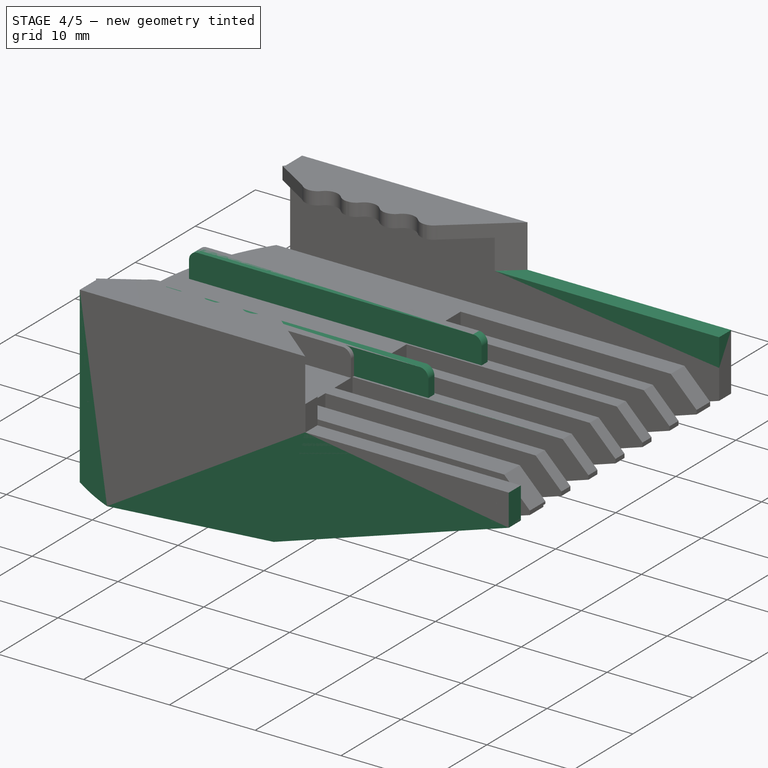
[diagram: stage 4 of 5 — iso view after this stage's code; geometry added in this stage tinted green]
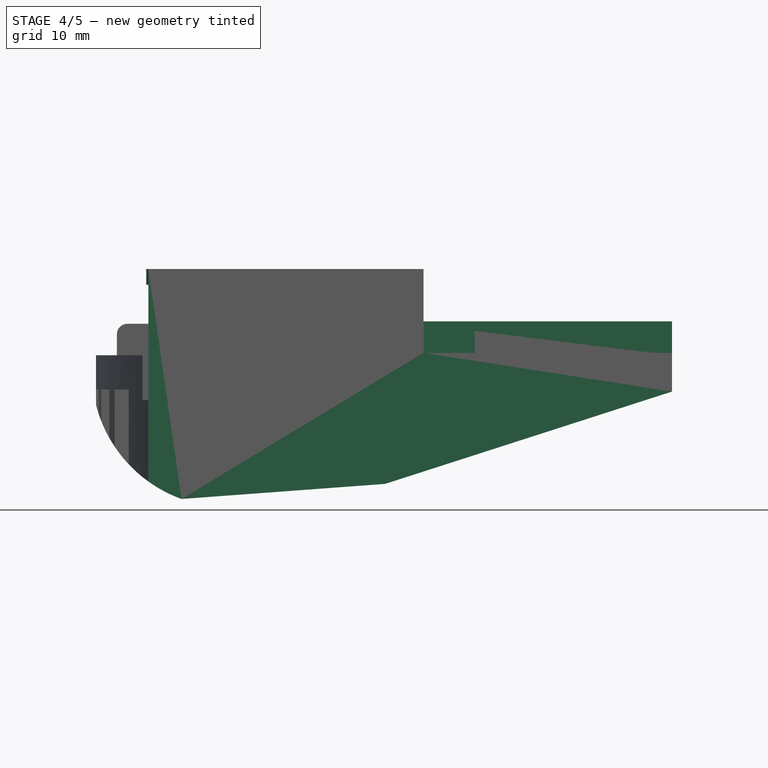
[diagram: stage 4 of 5 — front view after this stage's code; geometry added in this stage tinted green]
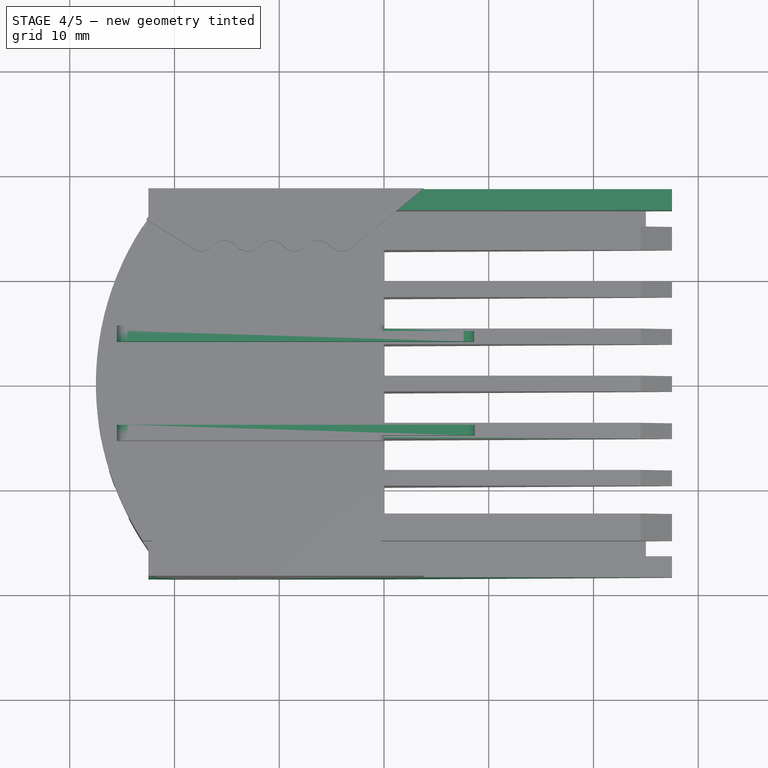
[diagram: stage 4 of 5 — top view after this stage's code; geometry added in this stage tinted green]
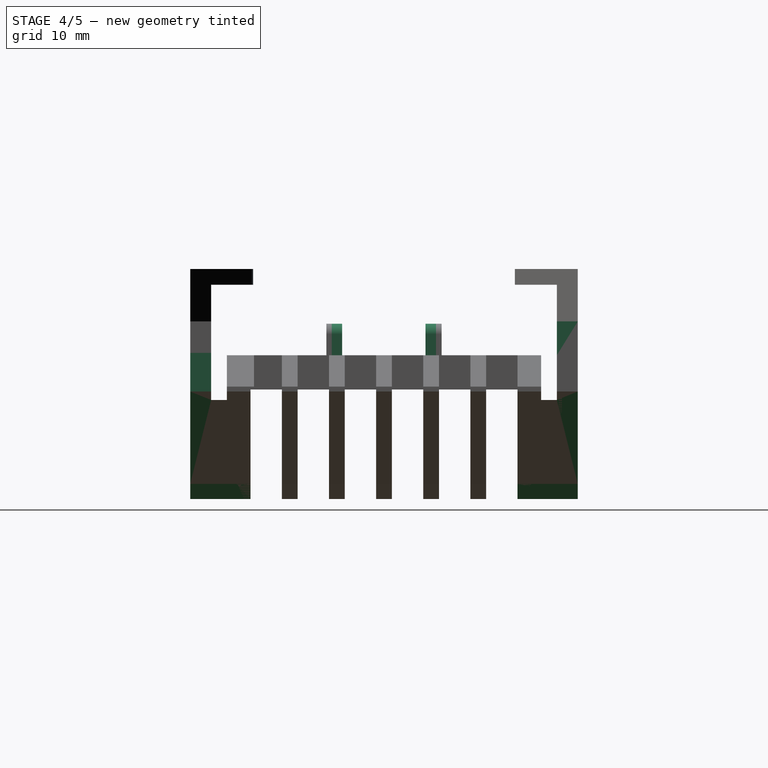
[diagram: stage 4 of 5 — right view after this stage's code; geometry added in this stage tinted green]
FEATURE [PartDesign::Plane] DatumPlane001
  AttachmentOffset = pos=(0,0,29) rot=(0,0,1;0rad)
  Length = 60
  MapMode = 2
  Placement = pos=(29,-6.4e-15,6.4e-15) rot=(0.57735,0.57735,0.57735;2.0944rad)
  ResizeMode = 0
  Support = -> [YZ_Plane]
  Width = 60
FEATURE [Sketcher::SketchObject] Sketch007
  FullyConstrained = false
  MapMode = 5
  Placement = pos=(29,-6.4e-15,6.4e-15) rot=(0.57735,0.57735,0.57735;2.0944rad)
  Support = -> [DatumPlane001]
  expr: Constraints[5] = <<parameters>>.width
  expr: Constraints[4] = <<parameters>>.width / 2
  sketch-geometry (8):
    g0: LineSegment StartX=18.5 StartY=10.3 StartZ=0 EndX=18.5 EndY=0 EndZ=0
    g1: LineSegment StartX=14 StartY=0 StartZ=0 EndX=-14 EndY=0 EndZ=0
    g2: LineSegment StartX=-18.5 StartY=0 StartZ=0 EndX=-18.5 EndY=10.3 EndZ=0
    g3: LineSegment StartX=-18.5 StartY=10.3 StartZ=0 EndX=-14 EndY=0 EndZ=0
    g4: LineSegment StartX=18.5 StartY=10.3 StartZ=0 EndX=14 EndY=0 EndZ=0
    g5: LineSegment StartX=-18.5 StartY=0 StartZ=0 EndX=-18.5 EndY=-2.49214 EndZ=0
    g6: LineSegment StartX=-18.5 StartY=-2.49214 StartZ=0 EndX=18.5 EndY=-2.49214 EndZ=0
    g7: LineSegment StartX=18.5 StartY=-2.49214 StartZ=0 EndX=18.5 EndY=0 EndZ=0
  constraints (18):
    c: Horizontal(g1)
    c: Vertical(g0)
    c: Vertical(g2)
    c: PointOnObject(g0,g-1)
    c: DistanceX(g-1,g0) = 18.5
    c: DistanceX(g2,g0) = 37
    c: DistanceY(g0,g0) = 10.3
    c: DistanceX(g2,g3) = 4.5
    c: DistanceX(g4,g0) = 4.5
    c: Coincident(g1,g3)
    c: Coincident(g1,g4)
    c: Coincident(g5,g2)
    c: Vertical(g5)
    c: Coincident(g6,g5)
    c: Horizontal(g6)
    c: Coincident(g7,g6)
    c: Coincident(g7,g0)
    c: Vertical(g7)
FEATURE [PartDesign::Fillet] Fillet
  Base = -> Pad001 [Edge145]
  BaseFeature = -> Pad001
  Radius = 1
  SupportTransform = false
FEATURE [PartDesign::Fillet] Fillet011
  Base = -> Fillet [Edge156]
  BaseFeature = -> Fillet
  Radius = 1
  SupportTransform = false
FEATURE [PartDesign::Fillet] Fillet012
  Base = -> Fillet011 [Edge154]
  BaseFeature = -> Fillet011
  Radius = 1
  SupportTransform = false
FEATURE [PartDesign::Fillet] Fillet013
  Base = -> Fillet012 [Edge157]
  BaseFeature = -> Fillet012
  Radius = 1
  SupportTransform = false
FEATURE [Sketcher::SketchObject] Sketch009
  FullyConstrained = true
  MapMode = 5
  Placement = pos=(0,-18.5,0) rot=(1,0,0;1.5708rad)
  Support = -> [Fillet013]
  sketch-geometry (4):
    g0: LineSegment StartX=3.75 StartY=17 StartZ=0 EndX=27.5 EndY=17 EndZ=0
    g1: LineSegment StartX=27.5 StartY=17 StartZ=0 EndX=27.5 EndY=14 EndZ=0
    g2: LineSegment StartX=27.5 StartY=14 StartZ=0 EndX=3.75 EndY=14 EndZ=0
    g3: LineSegment StartX=3.75 StartY=14 StartZ=0 EndX=3.75 EndY=17 EndZ=0
  constraints (12):
    c: Coincident(g0,g1)
    c: Coincident(g1,g2)
    c: Coincident(g2,g3)
    c: Coincident(g3,g0)
    c: Horizontal(g0)
    c: Horizontal(g2)
    c: Vertical(g1)
    c: Vertical(g3)
    c: DistanceY(g-1,g0) = 17
    c: DistanceY(g1,g0) = 3
    c: DistanceX(g-1,g2) = 3.75
    c: DistanceX(g0,g0) = 23.75
FEATURE [PartDesign::Pocket] Pocket008
  BaseFeature = -> Fillet013
  Length = 5
  Length2 = 100
  Profile = -> Sketch009
  Type = 0
FEATURE [PartDesign::Fillet] Fillet009
  Base = -> Chamfer007 [Edge15]
  BaseFeature = -> Chamfer007
  Radius = 1
  SupportTransform = false
FEATURE [PartDesign::Chamfer] Chamfer008
  Angle = 45
  Base = -> Fillet009 [Edge499]
  BaseFeature = -> Fillet009
  ChamferType = 0
  FlipDirection = false
  Size = 3
  Size2 = 1
  SupportTransform = false
FEATURE [PartDesign::Fillet] Fillet010
  Base = -> Chamfer008 [Edge7]
  BaseFeature = -> Chamfer008
  Radius = 1
  SupportTransform = false
FEATURE [PartDesign::Body] Body
  Group = -> [DatumPoint,Sketch,Pad,Sketch001,Pocket,Sketch002,Pocket001,DatumPlane,Sketch003,Pocket002,Sketch004,Pocket003,Pocket004,Chamfer,Chamfer001,Chamfer002,Chamfer003,Chamfer004,Chamfer005,Chamfer006,Sketch005,Pocket005,Sketch006,Pad001,Fillet001,Fillet002,Fillet003,Fillet004,DatumPlane001,Sketch007,Pocket006,Fillet005,Fillet006,Fillet007,Fillet008,Sketch008,Pocket007,Chamfer007,Fillet009,Chamfer008,+17 more]
  Origin = -> Origin
  Tip = -> Fillet019
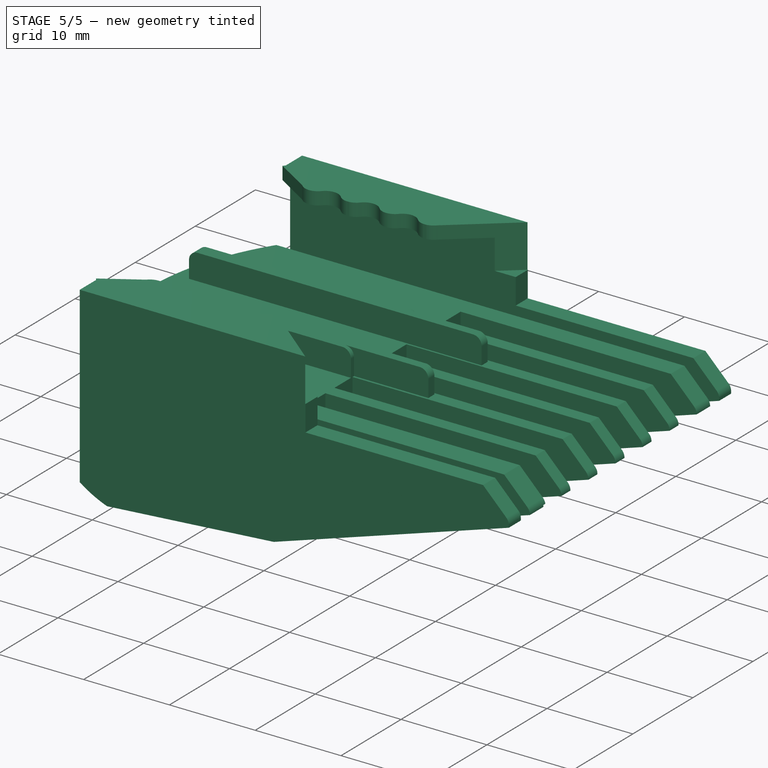
[diagram: stage 5 of 5 — iso view after this stage's code; geometry added in this stage tinted green]
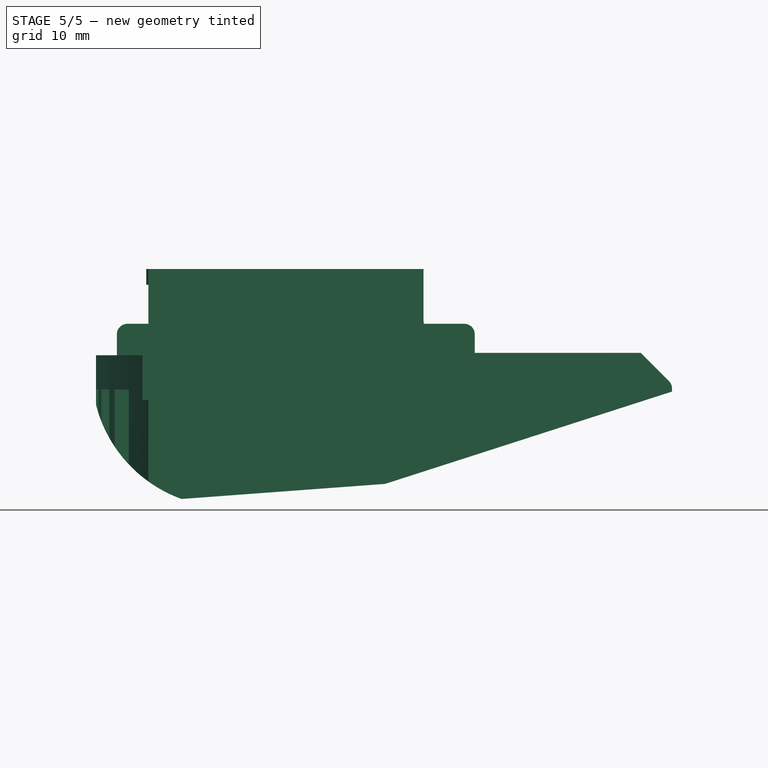
[diagram: stage 5 of 5 — front view after this stage's code; geometry added in this stage tinted green]
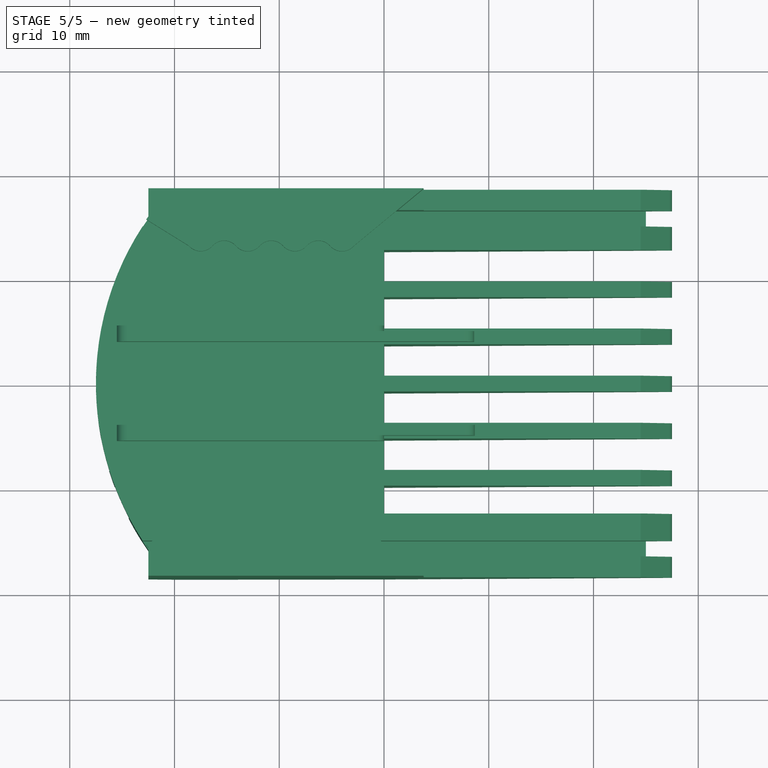
[diagram: stage 5 of 5 — top view after this stage's code; geometry added in this stage tinted green]
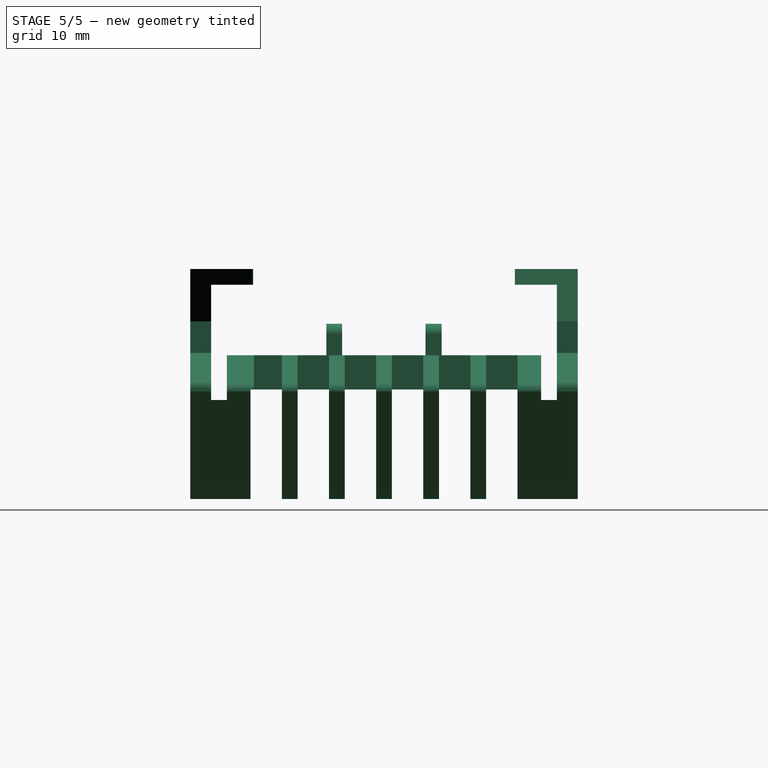
[diagram: stage 5 of 5 — right view after this stage's code; geometry added in this stage tinted green]
FEATURE [Sketcher::SketchObject] Sketch010
  FullyConstrained = true
  MapMode = 5
  Placement = pos=(0,18.5,0) rot=(0,0.707107,0.707107;3.14159rad)
  Support = -> [Pocket008]
  sketch-geometry (4):
    g0: LineSegment StartX=-27.5 StartY=17 StartZ=0 EndX=-3.75 EndY=17 EndZ=0
    g1: LineSegment StartX=-3.75 StartY=17 StartZ=0 EndX=-3.75 EndY=14 EndZ=0
    g2: LineSegment StartX=-3.75 StartY=14 StartZ=0 EndX=-27.5 EndY=14 EndZ=0
    g3: LineSegment StartX=-27.5 StartY=14 StartZ=0 EndX=-27.5 EndY=17 EndZ=0
  constraints (12):
    c: Coincident(g0,g1)
    c: Coincident(g1,g2)
    c: Coincident(g2,g3)
    c: Coincident(g3,g0)
    c: Horizontal(g0)
    c: Horizontal(g2)
    c: Vertical(g1)
    c: Vertical(g3)
    c: DistanceX(g1,g-1) = 3.75
    c: DistanceY(g2,g0) = 3
    c: DistanceY(g-1,g0) = 17
    c: DistanceX(g0,g0) = 23.75
FEATURE [PartDesign::Pocket] Pocket009
  BaseFeature = -> Pocket008
  Length = 5
  Length2 = 100
  Profile = -> Sketch010
  Type = 0
FEATURE [PartDesign::Chamfer] Chamfer009
  Angle = 45
  Base = -> Pocket009 [Edge405]
  BaseFeature = -> Pocket009
  ChamferType = 0
  FlipDirection = false
  Size = 3
  Size2 = 1
  SupportTransform = false
FEATURE [PartDesign::Chamfer] Chamfer010
  Angle = 45
  Base = -> Chamfer009 [Edge428]
  BaseFeature = -> Chamfer009
  ChamferType = 0
  FlipDirection = false
  Size = 3
  Size2 = 1
  SupportTransform = false
FEATURE [PartDesign::Fillet] Fillet014
  Base = -> Chamfer010 [Edge433]
  BaseFeature = -> Chamfer010
  Radius = 1
  SupportTransform = false
FEATURE [PartDesign::Fillet] Fillet015
  Base = -> Fillet014 [Edge76]
  BaseFeature = -> Fillet014
  Radius = 1
  SupportTransform = false
FEATURE [PartDesign::Fillet] Fillet016
  Base = -> Fillet015 [Edge153,Edge173,Edge166,Edge146,Edge135]
  BaseFeature = -> Fillet015
  Radius = 1
  SupportTransform = false
FEATURE [PartDesign::Fillet] Fillet017
  Base = -> Fillet016 [Edge63,Edge313]
  BaseFeature = -> Fillet016
  Radius = 1
  SupportTransform = false
FEATURE [PartDesign::Fillet] Fillet018
  Base = -> Fillet017 [Edge174,Edge324,Edge325,Edge326,Edge328,Edge266]
  BaseFeature = -> Fillet017
  Radius = 1
  SupportTransform = false
FEATURE [PartDesign::Fillet] Fillet019
  Base = -> Fillet018 [Edge350]
  BaseFeature = -> Fillet018
  Radius = 1
  SupportTransform = false
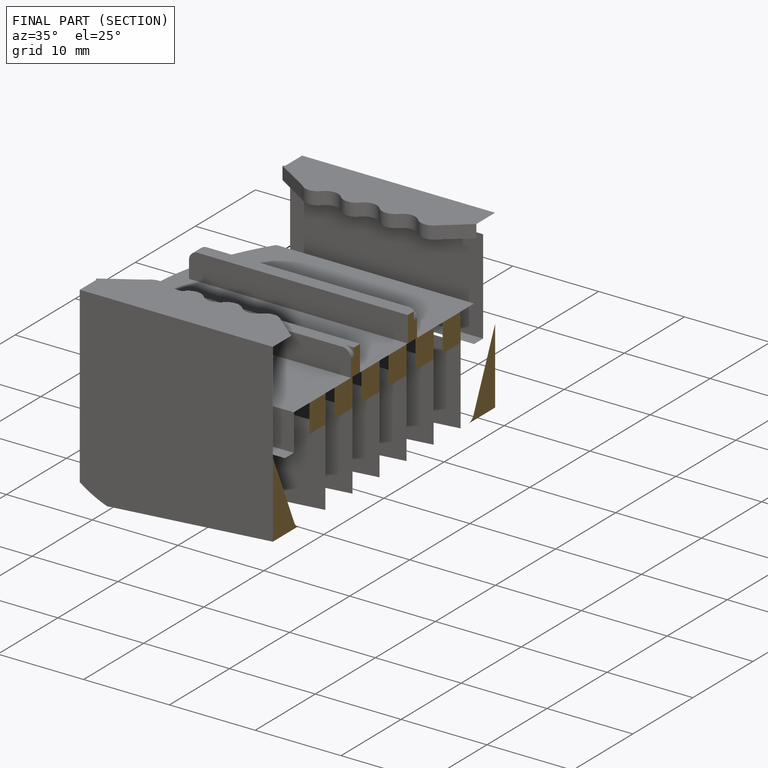
[diagram: finished part — half-section view (interior)]
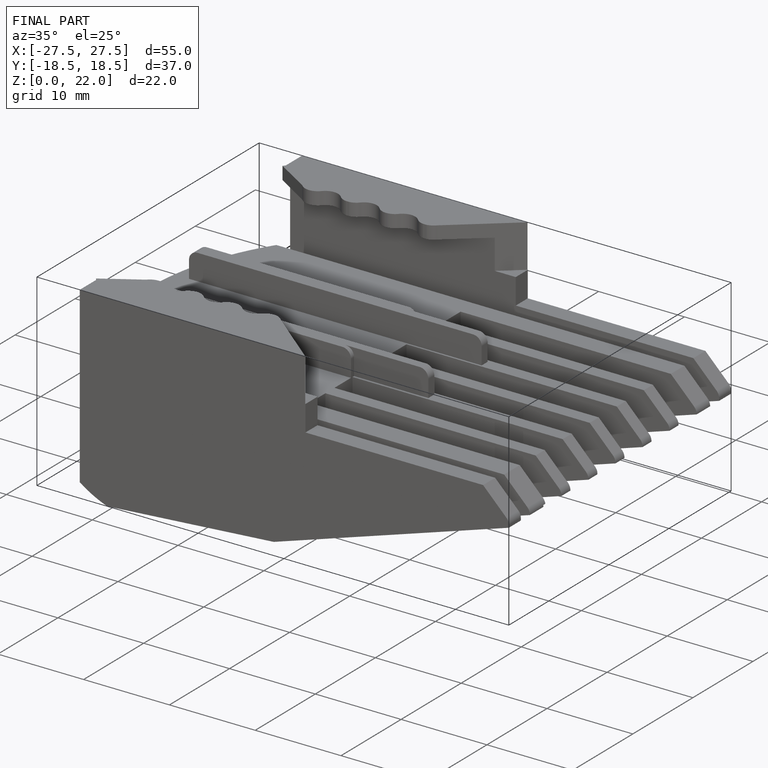
[diagram: finished part — iso view with bounding-box wireframe]
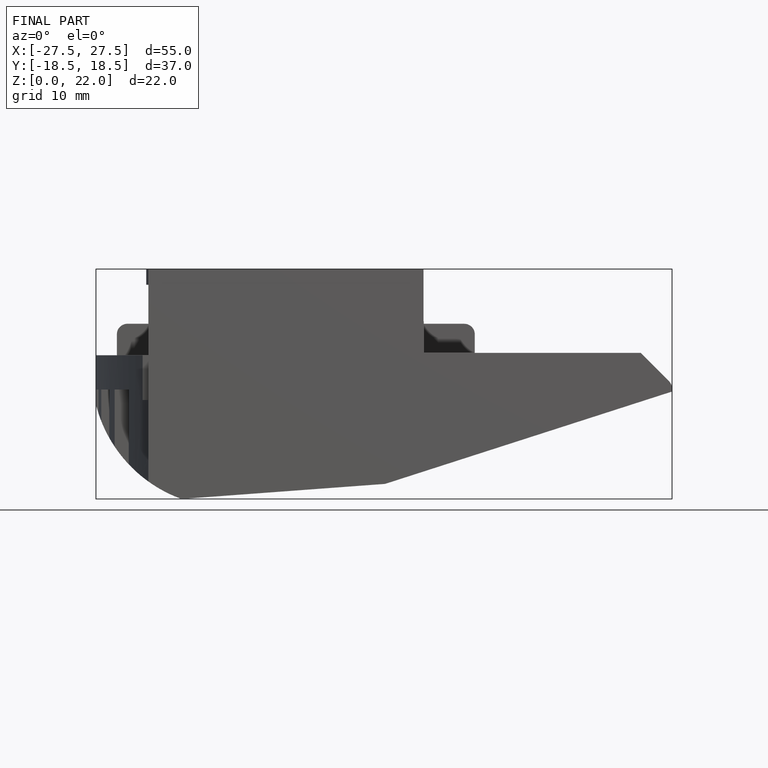
[diagram: finished part — front view with bounding-box wireframe]
